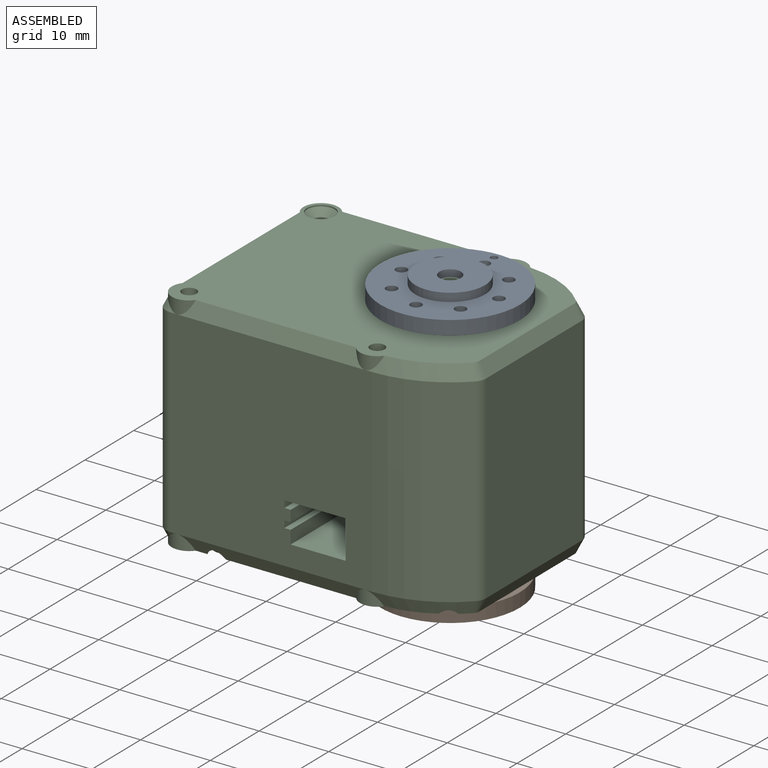
[diagram: assembled view]
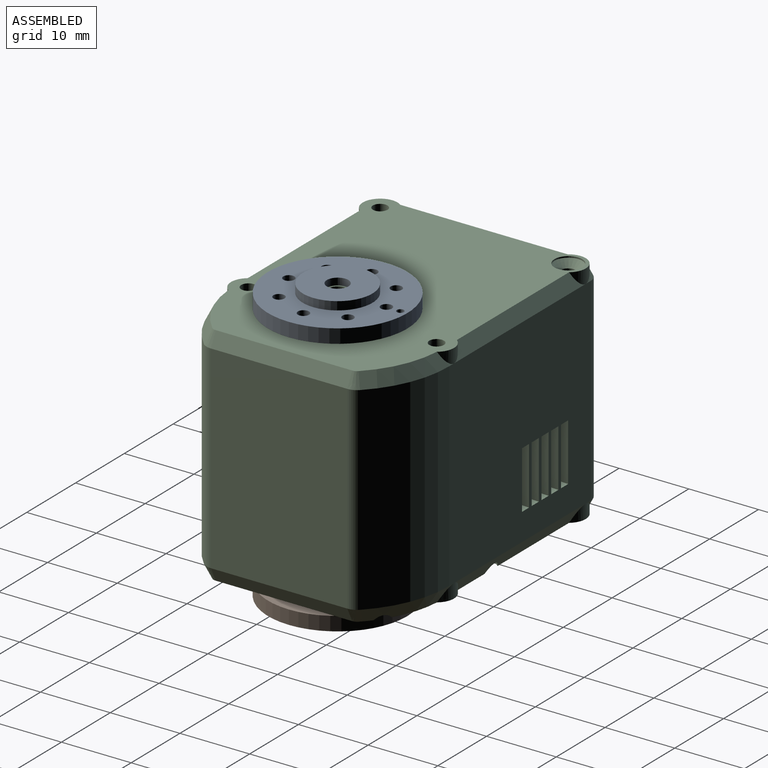
[diagram: assembled view, second angle]
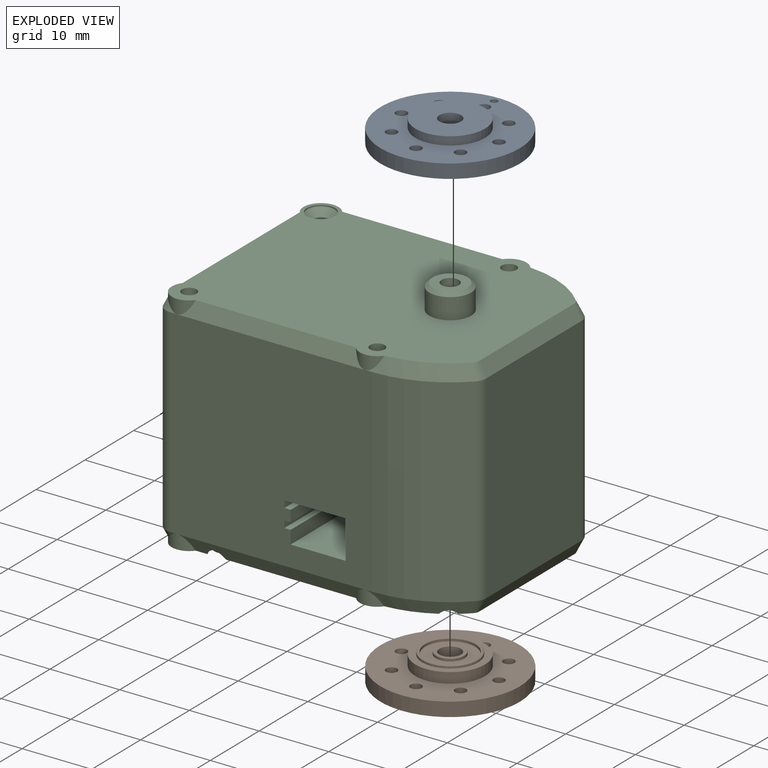
[diagram: exploded view]
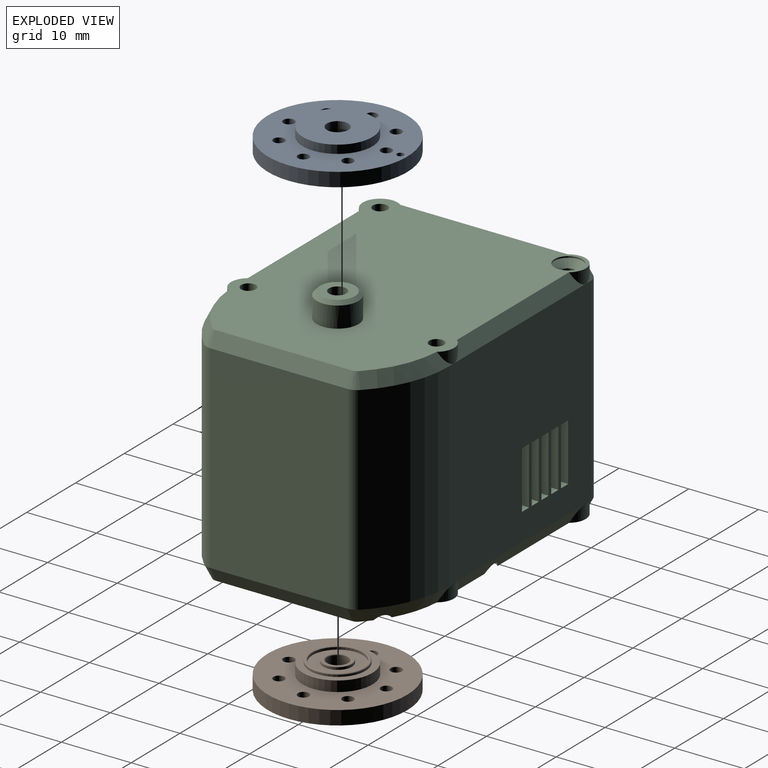
[diagram: exploded view, second angle]
ASSEMBLY  parts=3 mates=2
PART A: 19 faces, bbox 20x20x4.2 mm
  f0: cylinder r=5mm len=10mm, axis (0,0,-1), area 31.4mm2, adj f1,f5
  f1: plane 10x10mm, normal (0,0,-1), area 50.3mm2, adj f0,f8
  f2: cylinder r=5mm len=10mm, axis (0,0,1), area 37.7mm2, adj f3,f6
  f3: plane 10x10mm, normal (0,0,1), area 71mm2, adj f2,f7
  f4: cylinder r=10mm len=20mm, axis (0,0,1), area 125.7mm2, adj f5,f6
  f5: plane 20x20mm, normal (0,0,-1), area 218.7mm2, adj f0,f4,f10,f11,f12,f13,f14,f15
  f6: plane 20x20mm, normal (0,0,1), area 218.7mm2, adj f2,f4,f10,f11,f12,f13,f14,f15
  f7: cylinder r=1.55mm len=3.1mm, axis (0,0,1), area 9.7mm2, adj f3,f9
  f8: cylinder r=3mm len=6mm, axis (0,0,1), area 60.3mm2, adj f1,f9
  f9: plane 6x6mm, normal (0,0,-1), area 20.7mm2, adj f7,f8
  f10: cylinder r=0.8mm len=2mm, axis (0,0,1), area 10.1mm2, adj f5,f6
  f11: cylinder r=0.5mm len=2mm, axis (0,0,1), area 6.3mm2, adj f5,f6
  f12: cylinder r=0.8mm len=2mm, axis (0,0,1), area 10.1mm2, adj f5,f6
  f13: cylinder r=0.8mm len=2mm, axis (0,0,1), area 10.1mm2, adj f5,f6
  f14: cylinder r=0.8mm len=2mm, axis (0,0,1), area 10.1mm2, adj f5,f6
  f15: cylinder r=0.8mm len=2mm, axis (0,0,1), area 10.1mm2, adj f5,f6
  f16: cylinder r=0.8mm len=2mm, axis (0,0,1), area 10.1mm2, adj f5,f6
  f17: cylinder r=0.8mm len=2mm, axis (0,0,1), area 10.1mm2, adj f5,f6
  f18: cylinder r=0.8mm len=2mm, axis (0,0,1), area 10.1mm2, adj f5,f6
PART B: 32 faces, bbox 20x20x4.9 mm
  f0: cylinder r=3.25mm len=6.5mm, axis (0,0,-1), area 26.5mm2, adj f16,f31
  f1: cylinder r=2.05mm len=4.1mm, axis (0,0,1), area 4.2mm2, adj f3,f11
  f2: cylinder r=2.05mm len=4.1mm, axis (0,0,1), area 4.2mm2, adj f9,f31
  f3: torus R=1.98mm, axis (0,0,-1), area 1.5mm2, adj f1,f4
  f4: plane 3.95x3.95mm, normal (0,0,1), area 3.7mm2, adj f3,f5
  f5: torus R=1.65mm, axis (0,0,-1), area 2.3mm2, adj f4,f6
  f6: cylinder r=1.5mm len=3.7mm, axis (0,0,1), area 34.9mm2, adj f5,f7
  f7: torus R=1.65mm, axis (0,0,-1), area 2.3mm2, adj f6,f8
  f8: plane 3.95x3.95mm, normal (0,0,-1), area 3.7mm2, adj f7,f9
  f9: torus R=1.98mm, axis (0,0,-1), area 1.5mm2, adj f2,f8
  f10: cylinder r=3.6mm len=7.19mm, axis (0,0,-1), area 7.3mm2, adj f11,f14
  f11: plane 7.19x7.19mm, normal (0,0,1), area 27.4mm2, adj f1,f10
  f12: torus R=3.85mm, axis (0,0,1), area 5.8mm2, adj f13,f30
  f13: plane 7.7x7.7mm, normal (0,0,1), area 4.3mm2, adj f12,f14
  f14: torus R=3.67mm, axis (0,0,1), area 2.7mm2, adj f10,f13
  f15: cylinder r=5mm len=10mm, axis (0,0,-1), area 31.4mm2, adj f16,f20
  f16: plane 10x10mm, normal (0,0,-1), area 45.4mm2, adj f0,f15
  f17: cylinder r=5mm len=10mm, axis (0,0,1), area 47.1mm2, adj f18,f21
  f18: plane 10x10mm, normal (0,0,1), area 28.3mm2, adj f17,f30
  f19: cylinder r=10mm len=20mm, axis (0,0,1), area 125.7mm2, adj f20,f21
  f20: plane 20x20mm, normal (0,0,-1), area 219.5mm2, adj f15,f19,f22,f23,f24,f25,f26,f27
  f21: plane 20x20mm, normal (0,0,1), area 219.5mm2, adj f17,f19,f22,f23,f24,f25,f26,f27
  f22: cylinder r=0.8mm len=2mm, axis (0,0,1), area 10.1mm2, adj f20,f21
  f23: cylinder r=0.8mm len=2mm, axis (0,0,1), area 10.1mm2, adj f20,f21
  f24: cylinder r=0.8mm len=2mm, axis (0,0,1), area 10.1mm2, adj f20,f21
  f25: cylinder r=0.8mm len=2mm, axis (0,0,1), area 10.1mm2, adj f20,f21
  f26: cylinder r=0.8mm len=2mm, axis (0,0,1), area 10.1mm2, adj f20,f21
  f27: cylinder r=0.8mm len=2mm, axis (0,0,1), area 10.1mm2, adj f20,f21
  f28: cylinder r=0.8mm len=2mm, axis (0,0,1), area 10.1mm2, adj f20,f21
  f29: cylinder r=0.8mm len=2mm, axis (0,0,1), area 10.1mm2, adj f20,f21
  f30: cylinder r=4mm len=8mm, axis (0,0,-1), area 6.3mm2, adj f12,f18
  f31: plane 6.5x6.5mm, normal (0,0,-1), area 20mm2, adj f0,f2
PART C: 273 faces, bbox 43.9x32.9x36.9 mm
  f0: cylinder r=1.05mm len=8mm, axis (0,0,-1), area 52.8mm2, adj f30,f40
  f1: cylinder r=1.05mm len=8mm, axis (0,0,-1), area 52.8mm2, adj f30,f41
  f2: cylinder r=2mm len=4mm, axis (0,0,1), area 2.5mm2, adj f6,f30
  f3: cylinder r=1.05mm len=8mm, axis (0,0,-1), area 52.8mm2, adj f30,f42
  f4: cylinder r=3mm len=6mm, axis (0,0,1), area 56.5mm2, adj f30,f43,f44
  f5: cylinder r=2.5mm len=4.5mm, axis (0,0,-1), area 8.1mm2, adj f30,f31,f32,f46,f47
  f6: cone r=1000mm half-angle=45deg, axis (0,0,1), area 12.9mm2, adj f2,f9
  f7: cylinder r=0.85mm len=20.8mm, axis (0,0,1), area 111.1mm2, adj f40,f64
  f8: cylinder r=0.85mm len=20.8mm, axis (0,0,1), area 111.1mm2, adj f41,f65
  f9: cylinder r=1.05mm len=6.85mm, axis (0,0,-1), area 45.2mm2, adj f6,f66
  f10: cylinder r=0.85mm len=20.8mm, axis (0,0,1), area 111.1mm2, adj f42,f67
  f11: cylinder r=1.25mm len=9mm, axis (0,0,-1), area 70.7mm2, adj f59,f120
  f12: cylinder r=1.05mm len=3.7mm, axis (0,0,-1), area 24.4mm2, adj f64,f146
  f13: cylinder r=1.05mm len=3.7mm, axis (0,0,-1), area 24.4mm2, adj f65,f146
  f14: cylinder r=0.85mm len=20.8mm, axis (0,0,1), area 111.1mm2, adj f66,f147
  f15: cylinder r=1.05mm len=3.7mm, axis (0,0,-1), area 24.4mm2, adj f67,f146
  f16: cylinder r=2mm len=4mm, axis (0,0,-1), area 17.4mm2, adj f135,f146,f164
  f17: cylinder r=2mm len=4mm, axis (0,0,-1), area 17.8mm2, adj f137,f146,f165
  f18: cylinder r=2mm len=4mm, axis (0,0,-1), area 18.8mm2, adj f139,f146,f166
  f19: cylinder r=2mm len=4mm, axis (0,0,-1), area 17.4mm2, adj f144,f146,f187
  f20: cylinder r=4.25mm len=8.5mm, axis (0,0,-1), area 13.4mm2, adj f146,f188
  f21: cylinder r=2mm len=4mm, axis (0,0,-1), area 2.5mm2, adj f23,f146
  f22: cylinder r=1.05mm len=2.55mm, axis (0,0,-1), area 16.8mm2, adj f23,f147
  f23: cone r=1000mm half-angle=45deg, axis (0,0,-1), area 12.9mm2, adj f21,f22
  f24: cylinder r=1.75mm len=3.5mm, axis (0,0,-1), area 2.2mm2, adj f164,f195,f196
  f25: cylinder r=1.75mm len=3.5mm, axis (0,0,-1), area 2.2mm2, adj f165,f197,f198
  f26: cylinder r=1.75mm len=3.5mm, axis (0,0,-1), area 2.2mm2, adj f166,f199,f200
  f27: cylinder r=1.75mm len=3.5mm, axis (0,0,-1), area 2.2mm2, adj f187,f201,f202
  f28: cylinder r=2.7mm len=5.4mm, axis (0,0,-1), area 8.5mm2, adj f188,f203
  f29: cylinder r=1.2mm len=10mm, axis (0,0,-1), area 75.4mm2, adj f203,f272
  f30: plane 41.5x32mm, normal (0,0,1), area 1159.4mm2, adj f0,f1,f2,f3,f4,f5,f31,f32
  f31: plane 28.86x2.86mm, normal (-0.89,0,0.45), area 59.2mm2, adj f5,f30,f39,f45,f46,f58
  f32: plane 27.94x2.94mm, normal (0,0.89,0.45), area 54.1mm2, adj f5,f30,f33,f48
  f33: cylinder r=2.5mm len=4.03mm, axis (0,0,-1), area 5.2mm2, adj f30,f32,f34,f49
  f34: cone r=14.9mm half-angle=26.6deg, axis (0,0,-1), area 26.7mm2, adj f30,f33,f49,f50,f51
  f35: plane 19.6x2mm, normal (0.89,0,0.45), area 43.8mm2, adj f30,f51,f52,f53
  f36: cone r=14.9mm half-angle=26.6deg, axis (0,0,-1), area 26.7mm2, adj f30,f37,f52,f54,f55
  f37: cylinder r=2.5mm len=4.03mm, axis (0,0,-1), area 5.2mm2, adj f30,f36,f38,f55
  f38: plane 27.94x2.94mm, normal (0,-0.89,0.45), area 54.1mm2, adj f30,f37,f39,f56
  f39: cylinder r=2.5mm len=4.5mm, axis (0,0,-1), area 8.1mm2, adj f30,f31,f38,f57,f58
  f40: plane 2.1x2.1mm, normal (0,0,1), area 1.2mm2, adj f0,f7
  f41: plane 2.1x2.1mm, normal (0,0,1), area 1.2mm2, adj f1,f8
  f42: plane 2.1x2.1mm, normal (0,0,1), area 1.2mm2, adj f3,f10
  f43: revolved ~6x3mm, area 6.1mm2, adj f4,f44,f59
  f44: revolved ~6x3mm, area 6.1mm2, adj f4,f43,f59
  f45: plane 28.5x28mm, normal (-1,0,0), area 713.8mm2, adj f31,f60,f61,f68,f69,f70,f71,f72
  f46: cone r=1.16mm half-angle=26.6deg, axis (0,0,-1), area 3.1mm2, adj f5,f31,f47,f61
  f47: plane 1.21x0.62mm, normal (0,0.89,0.45), area 0.2mm2, adj f5,f46,f48
  f48: plane 29x28.5mm, normal (0,1,0), area 766.3mm2, adj f32,f47,f49,f50,f61,f96,f97,f98
  f49: plane 1.21x0.62mm, normal (0,0.89,0.45), area 0.2mm2, adj f33,f34,f48
  f50: cylinder r=16mm len=28.5mm, axis (0,0,-1), area 362.8mm2, adj f34,f48,f62,f137
  f51: cone r=1.16mm half-angle=26.6deg, axis (0,0,-1), area 2.6mm2, adj f30,f34,f35,f62
  f52: cone r=1.16mm half-angle=26.6deg, axis (0,0,-1), area 2.6mm2, adj f30,f35,f36,f63
  f53: plane 28.5x19.6mm, normal (1,0,0), area 558.5mm2, adj f35,f62,f63,f138
  f54: cylinder r=16mm len=28.5mm, axis (0,0,-1), area 362.8mm2, adj f36,f56,f63,f139
  f55: plane 1.21x0.62mm, normal (0,-0.89,0.45), area 0.2mm2, adj f36,f37,f56
  f56: plane 29x28.5mm, normal (0,-1,0), area 781.3mm2, adj f38,f54,f55,f57,f60,f116,f117,f118
  f57: plane 1.21x0.62mm, normal (0,-0.89,0.45), area 0.2mm2, adj f39,f56,f58
  f58: cone r=1.16mm half-angle=26.6deg, axis (0,0,-1), area 3.1mm2, adj f31,f39,f57,f60
  f59: plane 5x5mm, normal (0,0,1), area 14.7mm2, adj f11,f43,f44
  f60: cylinder r=2mm len=28.5mm, axis (0,0,-1), area 89.5mm2, adj f45,f56,f58,f148
  f61: cylinder r=2mm len=28.5mm, axis (0,0,-1), area 89.5mm2, adj f45,f46,f48,f151
  f62: cylinder r=2mm len=28.5mm, axis (0,0,-1), area 44.2mm2, adj f50,f51,f53,f153
  f63: cylinder r=2mm len=28.5mm, axis (0,0,-1), area 44.2mm2, adj f52,f53,f54,f154
  f64: plane 2.1x2.1mm, normal (0,0,-1), area 1.2mm2, adj f7,f12
  f65: plane 2.1x2.1mm, normal (0,0,-1), area 1.2mm2, adj f8,f13
  f66: plane 2.1x2.1mm, normal (0,0,1), area 1.2mm2, adj f9,f14
  f67: plane 2.1x2.1mm, normal (0,0,-1), area 1.2mm2, adj f10,f15
  f68: plane 1.7x1.46mm, normal (-0.1,0,-0.99), area 2.2mm2, adj f45,f69,f71,f121
  f69: plane 8.26x1.7mm, normal (-0.1,-0.99,0), area 13.8mm2, adj f45,f68,f70,f121
  f70: plane 1.7x1.46mm, normal (-0.1,0,0.99), area 2.2mm2, adj f45,f69,f71,f121
  f71: plane 8.26x1.7mm, normal (-0.1,0.99,0), area 13.8mm2, adj f45,f68,f70,f121
  f72: plane 1.7x1.46mm, normal (-0.1,0,-0.99), area 2.2mm2, adj f45,f73,f75,f122
  f73: plane 8.26x1.7mm, normal (-0.1,-0.99,0), area 13.8mm2, adj f45,f72,f74,f122
  f74: plane 1.7x1.46mm, normal (-0.1,0,0.99), area 2.2mm2, adj f45,f73,f75,f122
  f75: plane 8.26x1.7mm, normal (-0.1,0.99,0), area 13.8mm2, adj f45,f72,f74,f122
  f76: plane 1.7x1.46mm, normal (-0.1,0,-0.99), area 2.2mm2, adj f45,f77,f79,f123
  f77: plane 8.26x1.7mm, normal (-0.1,-0.99,0), area 13.8mm2, adj f45,f76,f78,f123
  f78: plane 1.7x1.46mm, normal (-0.1,0,0.99), area 2.2mm2, adj f45,f77,f79,f123
  f79: plane 8.26x1.7mm, normal (-0.1,0.99,0), area 13.8mm2, adj f45,f76,f78,f123
  f80: plane 1.7x1.46mm, normal (-0.1,0,-0.99), area 2.2mm2, adj f45,f81,f83,f124
  f81: plane 8.26x1.7mm, normal (-0.1,-0.99,0), area 13.8mm2, adj f45,f80,f82,f124
  f82: plane 1.7x1.46mm, normal (-0.1,0,0.99), area 2.2mm2, adj f45,f81,f83,f124
  f83: plane 8.26x1.7mm, normal (-0.1,0.99,0), area 13.8mm2, adj f45,f80,f82,f124
  f84: plane 1.7x1.46mm, normal (-0.1,0,-0.99), area 2.2mm2, adj f45,f85,f87,f125
  f85: plane 8.26x1.7mm, normal (-0.1,-0.99,0), area 13.8mm2, adj f45,f84,f86,f125
  f86: plane 1.7x1.46mm, normal (-0.1,0,0.99), area 2.2mm2, adj f45,f85,f87,f125
  f87: plane 8.26x1.7mm, normal (-0.1,0.99,0), area 13.8mm2, adj f45,f84,f86,f125
  f88: plane 1.7x1.46mm, normal (-0.1,0,-0.99), area 2.2mm2, adj f45,f89,f91,f126
  f89: plane 8.26x1.7mm, normal (-0.1,-0.99,0), area 13.8mm2, adj f45,f88,f90,f126
  f90: plane 1.7x1.46mm, normal (-0.1,0,0.99), area 2.2mm2, adj f45,f89,f91,f126
  f91: plane 8.26x1.7mm, normal (-0.1,0.99,0), area 13.8mm2, adj f45,f88,f90,f126
  f92: plane 8.26x1.7mm, normal (-0.1,0.99,0), area 13.8mm2, adj f45,f93,f95,f127
  f93: plane 1.7x1.46mm, normal (-0.1,0,-0.99), area 2.2mm2, adj f45,f92,f94,f127
  f94: plane 8.26x1.7mm, normal (-0.1,-0.99,0), area 13.8mm2, adj f45,f93,f95,f127
  f95: plane 1.7x1.46mm, normal (-0.1,0,0.99), area 2.2mm2, adj f45,f92,f94,f127
  f96: plane 8.26x1.7mm, normal (-0.99,0.1,0), area 13.8mm2, adj f48,f97,f99,f129
  f97: plane 1.7x1.46mm, normal (0,0.1,0.99), area 2.2mm2, adj f48,f96,f98,f129
  f98: plane 8.26x1.7mm, normal (0.99,0.1,0), area 13.8mm2, adj f48,f97,f99,f129
  f99: plane 1.7x1.46mm, normal (0,0.1,-0.99), area 2.2mm2, adj f48,f96,f98,f129
  f100: plane 8.26x1.7mm, normal (-0.99,0.1,0), area 13.8mm2, adj f48,f101,f103,f130
  f101: plane 1.7x1.46mm, normal (0,0.1,0.99), area 2.2mm2, adj f48,f100,f102,f130
  f102: plane 8.26x1.7mm, normal (0.99,0.1,0), area 13.8mm2, adj f48,f101,f103,f130
  f103: plane 1.7x1.46mm, normal (0,0.1,-0.99), area 2.2mm2, adj f48,f100,f102,f130
  f104: plane 8.26x1.7mm, normal (-0.99,0.1,0), area 13.8mm2, adj f48,f105,f107,f131
  f105: plane 1.7x1.46mm, normal (0,0.1,0.99), area 2.2mm2, adj f48,f104,f106,f131
  f106: plane 8.26x1.7mm, normal (0.99,0.1,0), area 13.8mm2, adj f48,f105,f107,f131
  f107: plane 1.7x1.46mm, normal (0,0.1,-0.99), area 2.2mm2, adj f48,f104,f106,f131
  f108: plane 8.26x1.7mm, normal (-0.99,0.1,0), area 13.8mm2, adj f48,f109,f111,f132
  f109: plane 1.7x1.46mm, normal (0,0.1,0.99), area 2.2mm2, adj f48,f108,f110,f132
  f110: plane 8.26x1.7mm, normal (0.99,0.1,0), area 13.8mm2, adj f48,f109,f111,f132
  f111: plane 1.7x1.46mm, normal (0,0.1,-0.99), area 2.2mm2, adj f48,f108,f110,f132
  f112: plane 1.7x1.46mm, normal (0,0.1,-0.99), area 2.2mm2, adj f48,f113,f115,f133
  f113: plane 8.26x1.7mm, normal (-0.99,0.1,0), area 13.8mm2, adj f48,f112,f114,f133
  f114: plane 1.7x1.46mm, normal (0,0.1,0.99), area 2.2mm2, adj f48,f113,f115,f133
  f115: plane 8.26x1.7mm, normal (0.99,0.1,0), area 13.8mm2, adj f48,f112,f114,f133
  f116: plane 14.2x1.9mm, normal (1,0,0), area 27mm2, adj f56,f117,f140,f141
  f117: plane 14.2x7.9mm, normal (0,0,1), area 112.2mm2, adj f56,f116,f118,f141
  f118: plane 14.2x5.5mm, normal (-1,0,0), area 78.1mm2, adj f56,f117,f119,f141
  f119: plane 14.2x8.8mm, normal (0,0,-1), area 125mm2, adj f56,f118,f141,f142
  f120: plane 2.5x2.5mm, normal (0,0,1), area 4.9mm2, adj f11
  f121: plane 7.9x1.1mm, normal (-1,0,0), area 8.7mm2, adj f68,f69,f70,f71
  f122: plane 7.9x1.1mm, normal (-1,0,0), area 8.7mm2, adj f72,f73,f74,f75
  f123: plane 7.9x1.1mm, normal (-1,0,0), area 8.7mm2, adj f76,f77,f78,f79
  f124: plane 7.9x1.1mm, normal (-1,0,0), area 8.7mm2, adj f80,f81,f82,f83
  f125: plane 7.9x1.1mm, normal (-1,0,0), area 8.7mm2, adj f84,f85,f86,f87
  f126: plane 7.9x1.1mm, normal (-1,0,0), area 8.7mm2, adj f88,f89,f90,f91
  f127: plane 7.9x1.1mm, normal (-1,0,0), area 8.7mm2, adj f92,f93,f94,f95
  f128: plane 28.86x2.86mm, normal (-0.89,0,-0.45), area 59.2mm2, adj f45,f146,f148,f149,f150,f151
  f129: plane 7.9x1.1mm, normal (0,1,0), area 8.7mm2, adj f96,f97,f98,f99
  f130: plane 7.9x1.1mm, normal (0,1,0), area 8.7mm2, adj f100,f101,f102,f103
  f131: plane 7.9x1.1mm, normal (0,1,0), area 8.7mm2, adj f104,f105,f106,f107
  f132: plane 7.9x1.1mm, normal (0,1,0), area 8.7mm2, adj f108,f109,f110,f111
  f133: plane 7.9x1.1mm, normal (0,1,0), area 8.7mm2, adj f112,f113,f114,f115
  f134: plane 1.21x0.62mm, normal (0,0.89,-0.45), area 0.2mm2, adj f48,f150,f151
  f135: plane 27.94x2.94mm, normal (0,0.89,-0.45), area 52.1mm2, adj f16,f48,f146,f150,f152
  f136: plane 1.21x0.62mm, normal (0,0.89,-0.45), area 0.2mm2, adj f48,f137,f152
  f137: cone r=14.9mm half-angle=26.6deg, axis (0,0,1), area 25.4mm2, adj f17,f50,f136,f146,f152,f153
  f138: plane 19.6x2mm, normal (0.89,0,-0.45), area 43.8mm2, adj f53,f146,f153,f154
  f139: cone r=14.9mm half-angle=26.6deg, axis (0,0,1), area 25.6mm2, adj f18,f54,f143,f146,f154,f155
  f140: plane 14.2x0.9mm, normal (0,0,1), area 12.8mm2, adj f56,f116,f141,f156
  f141: plane 8.8x5.5mm, normal (0,-1,0), area 42.8mm2, adj f116,f117,f118,f119,f140,f142,f156,f157
  f142: plane 14.2x1mm, normal (1,0,0), area 14.2mm2, adj f56,f119,f141,f163
  f143: plane 1.21x0.62mm, normal (0,-0.89,-0.45), area 0.2mm2, adj f56,f139,f155
  f144: plane 27.94x2.94mm, normal (0,-0.89,-0.45), area 52.1mm2, adj f19,f56,f146,f149,f155
  f145: plane 1.21x0.62mm, normal (0,-0.89,-0.45), area 0.2mm2, adj f56,f148,f149
  f146: plane 41.5x32mm, normal (0,0,-1), area 1083.4mm2, adj f12,f13,f15,f16,f17,f18,f19,f20
  f147: plane 2.1x2.1mm, normal (0,0,-1), area 1.2mm2, adj f14,f22
  f148: cone r=1.16mm half-angle=26.6deg, axis (0,0,1), area 3.1mm2, adj f60,f128,f145,f149
  f149: cylinder r=2.5mm len=4.5mm, axis (0,0,1), area 8.1mm2, adj f128,f144,f145,f146,f148
  f150: cylinder r=2.5mm len=4.5mm, axis (0,0,1), area 8.1mm2, adj f128,f134,f135,f146,f151
  f151: cone r=1.16mm half-angle=26.6deg, axis (0,0,1), area 3.1mm2, adj f61,f128,f134,f150
  f152: cylinder r=2.5mm len=4.03mm, axis (0,0,1), area 5.2mm2, adj f135,f136,f137,f146
  f153: cone r=1.16mm half-angle=26.6deg, axis (0,0,1), area 2.6mm2, adj f62,f137,f138,f146
  f154: cone r=1.16mm half-angle=26.6deg, axis (0,0,1), area 2.6mm2, adj f63,f138,f139,f146
  f155: cylinder r=2.5mm len=4.03mm, axis (0,0,1), area 5.2mm2, adj f139,f143,f144,f146
  f156: plane 14.2x1mm, normal (1,0,0), area 14.2mm2, adj f56,f140,f141,f167
  f157: plane 5.7x0.64mm, normal (-1,0,0), area 3.6mm2, adj f141,f168,f169,f170
  f158: plane 5.7x0.64mm, normal (-1,0,0), area 3.6mm2, adj f141,f171,f172,f173
  f159: plane 5.7x0.64mm, normal (-1,0,0), area 3.6mm2, adj f141,f174,f175,f176
  f160: plane 5.7x0.64mm, normal (-1,0,0), area 3.6mm2, adj f141,f177,f178,f179
  f161: plane 5.7x0.64mm, normal (-1,0,0), area 3.6mm2, adj f141,f180,f181,f182
  f162: plane 5.7x0.64mm, normal (0,0,-1), area 3.6mm2, adj f141,f183,f184,f185
  f163: plane 14.2x0.9mm, normal (0,0,1), area 12.8mm2, adj f56,f141,f142,f186
  f164: plane 4x4mm, normal (0,0,-1), area 2.9mm2, adj f16,f24
  f165: plane 4x4mm, normal (0,0,-1), area 2.9mm2, adj f17,f25
  f166: plane 4x4mm, normal (0,0,-1), area 2.9mm2, adj f18,f26
  f167: plane 14.2x0.9mm, normal (0,0,-1), area 12.8mm2, adj f56,f141,f156,f186
  f168: plane 5.7x0.64mm, normal (0,0,-1), area 3.6mm2, adj f141,f157,f170,f189
  f169: plane 5.7x0.64mm, normal (0,0,1), area 3.6mm2, adj f141,f157,f170,f189
  f170: plane 0.64x0.64mm, normal (0,-1,0), area 0.4mm2, adj f157,f168,f169,f189
  f171: plane 5.7x0.64mm, normal (0,0,-1), area 3.6mm2, adj f141,f158,f173,f190
  f172: plane 5.7x0.64mm, normal (0,0,1), area 3.6mm2, adj f141,f158,f173,f190
  f173: plane 0.64x0.64mm, normal (0,-1,0), area 0.4mm2, adj f158,f171,f172,f190
  f174: plane 5.7x0.64mm, normal (0,0,-1), area 3.6mm2, adj f141,f159,f176,f191
  f175: plane 5.7x0.64mm, normal (0,0,1), area 3.6mm2, adj f141,f159,f176,f191
  f176: plane 0.64x0.64mm, normal (0,-1,0), area 0.4mm2, adj f159,f174,f175,f191
  f177: plane 5.7x0.64mm, normal (0,0,-1), area 3.6mm2, adj f141,f160,f179,f192
  f178: plane 5.7x0.64mm, normal (0,0,1), area 3.6mm2, adj f141,f160,f179,f192
  f179: plane 0.64x0.64mm, normal (0,-1,0), area 0.4mm2, adj f160,f177,f178,f192
  f180: plane 5.7x0.64mm, normal (0,0,-1), area 3.6mm2, adj f141,f161,f182,f193
  f181: plane 5.7x0.64mm, normal (0,0,1), area 3.6mm2, adj f141,f161,f182,f193
  f182: plane 0.64x0.64mm, normal (0,-1,0), area 0.4mm2, adj f161,f180,f181,f193
  f183: plane 5.7x0.64mm, normal (1,0,0), area 3.6mm2, adj f141,f162,f185,f194
  f184: plane 5.7x0.64mm, normal (-1,0,0), area 3.6mm2, adj f141,f162,f185,f194
  f185: plane 0.64x0.64mm, normal (0,-1,0), area 0.4mm2, adj f162,f183,f184,f194
  f186: plane 14.2x1.6mm, normal (1,0,0), area 22.7mm2, adj f56,f141,f163,f167
  f187: plane 4x4mm, normal (0,0,-1), area 2.9mm2, adj f19,f27
  f188: plane 8.5x8.5mm, normal (0,0,-1), area 33.8mm2, adj f20,f28
  f189: plane 5.7x0.64mm, normal (1,0,0), area 3.6mm2, adj f141,f168,f169,f170
  f190: plane 5.7x0.64mm, normal (1,0,0), area 3.6mm2, adj f141,f171,f172,f173
  f191: plane 5.7x0.64mm, normal (1,0,0), area 3.6mm2, adj f141,f174,f175,f176
  f192: plane 5.7x0.64mm, normal (1,0,0), area 3.6mm2, adj f141,f177,f178,f179
  f193: plane 5.7x0.64mm, normal (1,0,0), area 3.6mm2, adj f141,f180,f181,f182
  f194: plane 5.7x0.64mm, normal (0,0,1), area 3.6mm2, adj f141,f183,f184,f185
  f195: torus R=0.75mm, axis (0,0,1), area 6mm2, adj f24,f196,f204,f205,f206,f207,f208,f209
  f196: torus R=0.75mm, axis (0,0,1), area 6mm2, adj f24,f195,f209,f210,f213,f214,f215,f216
  f197: torus R=0.75mm, axis (0,0,1), area 6mm2, adj f25,f198,f220,f221,f222,f223,f224,f225
  f198: torus R=0.75mm, axis (0,0,1), area 6mm2, adj f25,f197,f225,f226,f229,f230,f231,f232
  f199: torus R=0.75mm, axis (0,0,1), area 6mm2, adj f26,f200,f236,f237,f238,f239,f240,f241
  f200: torus R=0.75mm, axis (0,0,1), area 6mm2, adj f26,f199,f236,f244,f245,f246,f247,f248
  f201: torus R=0.75mm, axis (0,0,1), area 6mm2, adj f27,f202,f252,f253,f254,f255,f256,f257
  f202: torus R=0.75mm, axis (0,0,1), area 6mm2, adj f27,f201,f252,f260,f261,f262,f263,f264
  f203: plane 5.4x5.4mm, normal (0,0,-1), area 18.4mm2, adj f28,f29
  f204: plane 0.82x0.64mm, normal (0.92,0.38,0), area 0.5mm2, adj f195,f205,f211,f212,f268
  f205: plane 0.49x0.41mm, normal (0.38,-0.92,0), area 0.2mm2, adj f195,f204,f206,f268
  f206: plane 0.81x0.64mm, normal (-0.92,-0.38,0), area 0.5mm2, adj f195,f205,f207,f208,f268
  f207: sphere r=3.75mm, area 0.3mm2, adj f195,f206,f208
  f208: plane 0.82x0.64mm, normal (0.38,-0.92,0), area 0.5mm2, adj f195,f206,f207,f209,f268
  f209: plane 0.49x0.42mm, normal (-0.92,-0.38,0), area 0.2mm2, adj f195,f196,f208,f213,f268
  f210: plane 0.49x0.42mm, normal (0.92,0.38,0), area 0.2mm2, adj f195,f196,f211,f219,f268
  f211: plane 0.81x0.64mm, normal (0.38,-0.92,0), area 0.5mm2, adj f195,f204,f210,f212,f268
  f212: sphere r=3.75mm, area 0.3mm2, adj f195,f204,f211
  f213: plane 0.81x0.64mm, normal (-0.38,0.92,0), area 0.5mm2, adj f196,f209,f214,f215,f268
  f214: sphere r=3.75mm, area 0.3mm2, adj f196,f213,f215
  f215: plane 0.82x0.64mm, normal (-0.92,-0.38,0), area 0.5mm2, adj f196,f213,f214,f216,f268
  f216: plane 0.49x0.41mm, normal (-0.38,0.92,0), area 0.2mm2, adj f196,f215,f217,f268
  f217: plane 0.81x0.64mm, normal (0.92,0.38,0), area 0.5mm2, adj f196,f216,f218,f219,f268
  f218: sphere r=3.75mm, area 0.3mm2, adj f196,f217,f219
  f219: plane 0.82x0.64mm, normal (-0.38,0.92,0), area 0.5mm2, adj f196,f210,f217,f218,f268
  f220: plane 0.82x0.64mm, normal (0.92,0.38,0), area 0.5mm2, adj f197,f221,f227,f228,f269
  f221: plane 0.49x0.41mm, normal (0.38,-0.92,0), area 0.2mm2, adj f197,f220,f222,f269
  f222: plane 0.81x0.64mm, normal (-0.92,-0.38,0), area 0.5mm2, adj f197,f221,f223,f224,f269
  f223: sphere r=3.75mm, area 0.3mm2, adj f197,f222,f224
  f224: plane 0.82x0.64mm, normal (0.38,-0.92,0), area 0.5mm2, adj f197,f222,f223,f225,f269
  f225: plane 0.49x0.42mm, normal (-0.92,-0.38,0), area 0.2mm2, adj f197,f198,f224,f229,f269
  f226: plane 0.49x0.42mm, normal (0.92,0.38,0), area 0.2mm2, adj f197,f198,f227,f235,f269
  f227: plane 0.81x0.64mm, normal (0.38,-0.92,0), area 0.5mm2, adj f197,f220,f226,f228,f269
  f228: sphere r=3.75mm, area 0.3mm2, adj f197,f220,f227
  f229: plane 0.81x0.64mm, normal (-0.38,0.92,0), area 0.5mm2, adj f198,f225,f230,f231,f269
  f230: sphere r=3.75mm, area 0.3mm2, adj f198,f229,f231
  f231: plane 0.82x0.64mm, normal (-0.92,-0.38,0), area 0.5mm2, adj f198,f229,f230,f232,f269
  f232: plane 0.49x0.41mm, normal (-0.38,0.92,0), area 0.2mm2, adj f198,f231,f233,f269
  f233: plane 0.81x0.64mm, normal (0.92,0.38,0), area 0.5mm2, adj f198,f232,f234,f235,f269
  f234: sphere r=3.75mm, area 0.3mm2, adj f198,f233,f235
  f235: plane 0.82x0.64mm, normal (-0.38,0.92,0), area 0.5mm2, adj f198,f226,f233,f234,f269
  f236: plane 0.49x0.42mm, normal (-0.92,-0.38,0), area 0.2mm2, adj f199,f200,f237,f249,f270
  f237: plane 0.81x0.64mm, normal (-0.38,0.92,0), area 0.5mm2, adj f199,f236,f238,f239,f270
  f238: sphere r=3.75mm, area 0.3mm2, adj f199,f237,f239
  f239: plane 0.82x0.64mm, normal (-0.92,-0.38,0), area 0.5mm2, adj f199,f237,f238,f240,f270
  f240: plane 0.49x0.41mm, normal (-0.38,0.92,0), area 0.2mm2, adj f199,f239,f241,f270
  f241: plane 0.81x0.64mm, normal (0.92,0.38,0), area 0.5mm2, adj f199,f240,f242,f243,f270
  f242: sphere r=3.75mm, area 0.3mm2, adj f199,f241,f243
  f243: plane 0.82x0.64mm, normal (-0.38,0.92,0), area 0.5mm2, adj f199,f241,f242,f244,f270
  f244: plane 0.49x0.42mm, normal (0.92,0.38,0), area 0.2mm2, adj f199,f200,f243,f250,f270
  f245: plane 0.82x0.64mm, normal (0.92,0.38,0), area 0.5mm2, adj f200,f246,f250,f251,f270
  f246: plane 0.49x0.41mm, normal (0.38,-0.92,0), area 0.2mm2, adj f200,f245,f247,f270
  f247: plane 0.81x0.64mm, normal (-0.92,-0.38,0), area 0.5mm2, adj f200,f246,f248,f249,f270
  f248: sphere r=3.75mm, area 0.3mm2, adj f200,f247,f249
  f249: plane 0.82x0.64mm, normal (0.38,-0.92,0), area 0.5mm2, adj f200,f236,f247,f248,f270
  f250: plane 0.81x0.64mm, normal (0.38,-0.92,0), area 0.5mm2, adj f200,f244,f245,f251,f270
  f251: sphere r=3.75mm, area 0.3mm2, adj f200,f245,f250
  f252: plane 0.49x0.42mm, normal (-0.92,-0.38,0), area 0.2mm2, adj f201,f202,f253,f265,f271
  f253: plane 0.81x0.64mm, normal (-0.38,0.92,0), area 0.5mm2, adj f201,f252,f254,f255,f271
  f254: sphere r=3.75mm, area 0.3mm2, adj f201,f253,f255
  f255: plane 0.82x0.64mm, normal (-0.92,-0.38,0), area 0.5mm2, adj f201,f253,f254,f256,f271
  f256: plane 0.49x0.41mm, normal (-0.38,0.92,0), area 0.2mm2, adj f201,f255,f257,f271
  f257: plane 0.81x0.64mm, normal (0.92,0.38,0), area 0.5mm2, adj f201,f256,f258,f259,f271
  f258: sphere r=3.75mm, area 0.3mm2, adj f201,f257,f259
  f259: plane 0.82x0.64mm, normal (-0.38,0.92,0), area 0.5mm2, adj f201,f257,f258,f260,f271
  f260: plane 0.49x0.42mm, normal (0.92,0.38,0), area 0.2mm2, adj f201,f202,f259,f266,f271
  f261: plane 0.82x0.64mm, normal (0.92,0.38,0), area 0.5mm2, adj f202,f262,f266,f267,f271
  f262: plane 0.49x0.41mm, normal (0.38,-0.92,0), area 0.2mm2, adj f202,f261,f263,f271
  f263: plane 0.81x0.64mm, normal (-0.92,-0.38,0), area 0.5mm2, adj f202,f262,f264,f265,f271
  f264: sphere r=3.75mm, area 0.3mm2, adj f202,f263,f265
  f265: plane 0.82x0.64mm, normal (0.38,-0.92,0), area 0.5mm2, adj f202,f252,f263,f264,f271
  f266: plane 0.81x0.64mm, normal (0.38,-0.92,0), area 0.5mm2, adj f202,f260,f261,f267,f271
  f267: sphere r=3.75mm, area 0.3mm2, adj f202,f261,f266
  f268: plane 2.2x2.2mm, normal (0,0,-1), area 1.7mm2, adj f204,f205,f206,f208,f209,f210,f211,f213
  f269: plane 2.2x2.2mm, normal (0,0,-1), area 1.7mm2, adj f220,f221,f222,f224,f225,f226,f227,f229
  f270: plane 2.2x2.2mm, normal (0,0,-1), area 1.7mm2, adj f236,f237,f239,f240,f241,f243,f244,f245
  f271: plane 2.2x2.2mm, normal (0,0,-1), area 1.7mm2, adj f252,f253,f255,f256,f257,f259,f260,f261
  f272: plane 2.4x2.4mm, normal (0,0,-1), area 4.5mm2, adj f29
PLACE A t=(-7.06,0.69,-11.75)mm
PLACE B t=(-7.06,0.69,8.75)mm
PLACE C t=(-7.06,0.69,8.25)mm fixed
MATE fastened B.f19 <-> C.f137  axis (0,0,1) through (-7.06,0.69,-27.75)mm
MATE fastened A.f4 <-> C.f11  axis (0,0,-1) through (-7.06,0.69,8.25)mm
